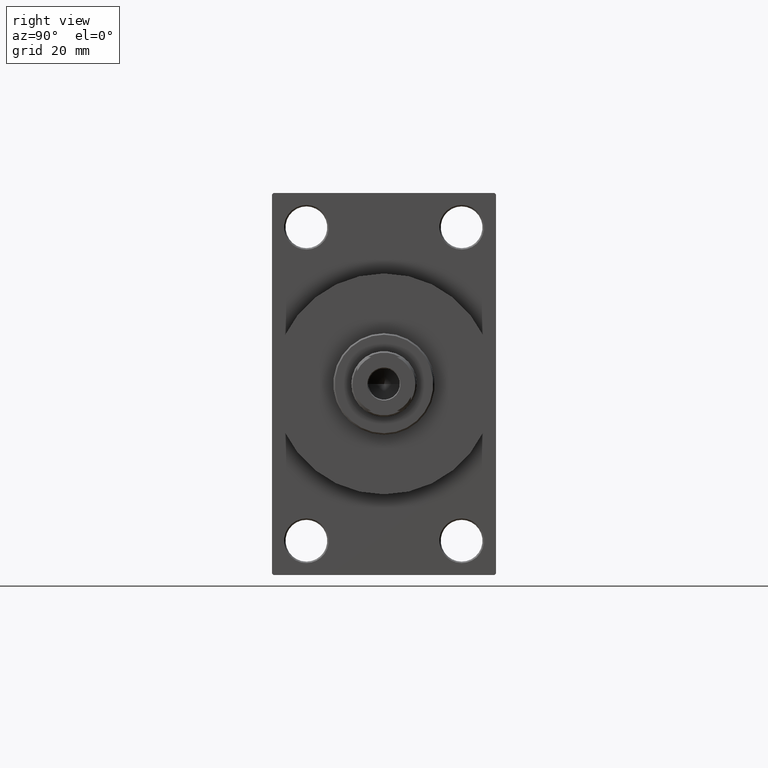
[diagram: clean part render]
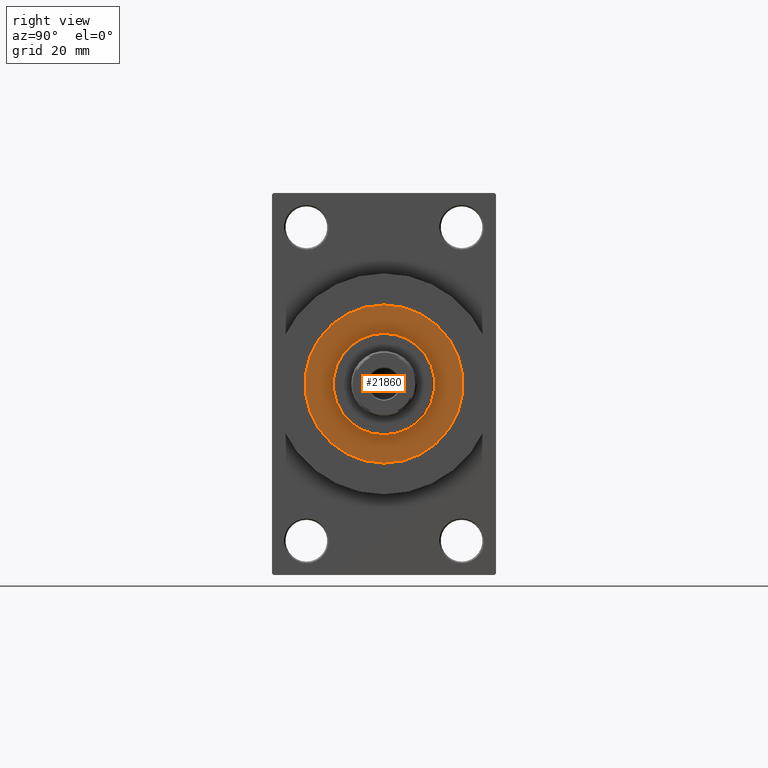
[diagram: same view with one face highlighted and labeled with its STEP entity id]
A machine part, right view. The second image highlights one B-rep face of the part: STEP entity #21860.
In plain terms, the highlighted planar face has unit normal (1, 0, 0).
Its self-contained STEP definition (entity closure, byte-faithful):
#539 = DIRECTION ( 'NONE',  ( 0.000000000000000000, 0.000000000000000000, 1.000000000000000000 ) ) ;
#564 = DIRECTION ( 'NONE',  ( 0.000000000000000000, 0.000000000000000000, 1.000000000000000000 ) ) ;
#2044 = EDGE_CURVE ( 'NONE', #37955, #24356, #15112, .T. ) ;
#2918 = AXIS2_PLACEMENT_3D ( 'NONE', #4052, #26007, #33172 ) ;
#3068 = VERTEX_POINT ( 'NONE', #43147 ) ;
#3433 = DIRECTION ( 'NONE',  ( 1.000000000000000000, 0.000000000000000000, -0.000000000000000000 ) ) ;
#4052 = CARTESIAN_POINT ( 'NONE',  ( 0.000000000000000000, 0.000000000000000000, 43.25999999999999801 ) ) ;
#5149 = AXIS2_PLACEMENT_3D ( 'NONE', #17207, #13615, #32000 ) ;
#6411 = CARTESIAN_POINT ( 'NONE',  ( 0.000000000000000000, 0.000000000000000000, 43.25999999999999801 ) ) ;
#10438 = DIRECTION ( 'NONE',  ( 1.000000000000000000, 0.000000000000000000, 0.000000000000000000 ) ) ;
#12952 = ORIENTED_EDGE ( 'NONE', *, *, #2044, .F. ) ;
#13615 = DIRECTION ( 'NONE',  ( 0.000000000000000000, 0.000000000000000000, 1.000000000000000000 ) ) ;
#15112 = CIRCLE ( 'NONE', #2918, 17.00000000000000000 ) ;
#17207 = CARTESIAN_POINT ( 'NONE',  ( 0.000000000000000000, 0.000000000000000000, 43.25999999999999801 ) ) ;
#19208 = EDGE_CURVE ( 'NONE', #22044, #3068, #33647, .T. ) ;
#19384 = CARTESIAN_POINT ( 'NONE',  ( -26.50000000000000355, 0.000000000000000000, 43.25999999999999801 ) ) ;
#21196 = DIRECTION ( 'NONE',  ( 0.000000000000000000, 0.000000000000000000, 1.000000000000000000 ) ) ;
#21860 = ADVANCED_FACE ( 'NONE', ( #33486, #36151 ), #26083, .T. ) ;
#22044 = VERTEX_POINT ( 'NONE', #19384 ) ;
#24073 = AXIS2_PLACEMENT_3D ( 'NONE', #30346, #539, #37773 ) ;
#24356 = VERTEX_POINT ( 'NONE', #37015 ) ;
#26007 = DIRECTION ( 'NONE',  ( 0.000000000000000000, 0.000000000000000000, 1.000000000000000000 ) ) ;
#26083 = PLANE ( 'NONE',  #34510 ) ;
#27750 = ORIENTED_EDGE ( 'NONE', *, *, #40418, .F. ) ;
#28173 = EDGE_LOOP ( 'NONE', ( #43389, #30208 ) ) ;
#30208 = ORIENTED_EDGE ( 'NONE', *, *, #33568, .T. ) ;
#30346 = CARTESIAN_POINT ( 'NONE',  ( 0.000000000000000000, 0.000000000000000000, 43.25999999999999801 ) ) ;
#32000 = DIRECTION ( 'NONE',  ( 1.000000000000000000, 0.000000000000000000, 0.000000000000000000 ) ) ;
#32792 = CARTESIAN_POINT ( 'NONE',  ( 0.000000000000000000, 0.000000000000000000, 43.25999999999999801 ) ) ;
#33172 = DIRECTION ( 'NONE',  ( 1.000000000000000000, 0.000000000000000000, 0.000000000000000000 ) ) ;
#33486 = FACE_BOUND ( 'NONE', #44459, .T. ) ;
#33568 = EDGE_CURVE ( 'NONE', #3068, #22044, #44649, .T. ) ;
#33647 = CIRCLE ( 'NONE', #37481, 26.50000000000000355 ) ;
#34510 = AXIS2_PLACEMENT_3D ( 'NONE', #32792, #564, #3433 ) ;
#36151 = FACE_OUTER_BOUND ( 'NONE', #28173, .T. ) ;
#37015 = CARTESIAN_POINT ( 'NONE',  ( 17.00000000000000000, 2.081899558550500280E-15, 43.25999999999999801 ) ) ;
#37158 = CIRCLE ( 'NONE', #5149, 17.00000000000000000 ) ;
#37481 = AXIS2_PLACEMENT_3D ( 'NONE', #6411, #21196, #10438 ) ;
#37773 = DIRECTION ( 'NONE',  ( 1.000000000000000000, 0.000000000000000000, 0.000000000000000000 ) ) ;
#37837 = CARTESIAN_POINT ( 'NONE',  ( -17.00000000000000000, 0.000000000000000000, 43.25999999999999801 ) ) ;
#37955 = VERTEX_POINT ( 'NONE', #37837 ) ;
#40418 = EDGE_CURVE ( 'NONE', #24356, #37955, #37158, .T. ) ;
#43147 = CARTESIAN_POINT ( 'NONE',  ( 26.50000000000000355, 3.245314017740486554E-15, 43.25999999999999801 ) ) ;
#43389 = ORIENTED_EDGE ( 'NONE', *, *, #19208, .T. ) ;
#44459 = EDGE_LOOP ( 'NONE', ( #12952, #27750 ) ) ;
#44649 = CIRCLE ( 'NONE', #24073, 26.50000000000000355 ) ;